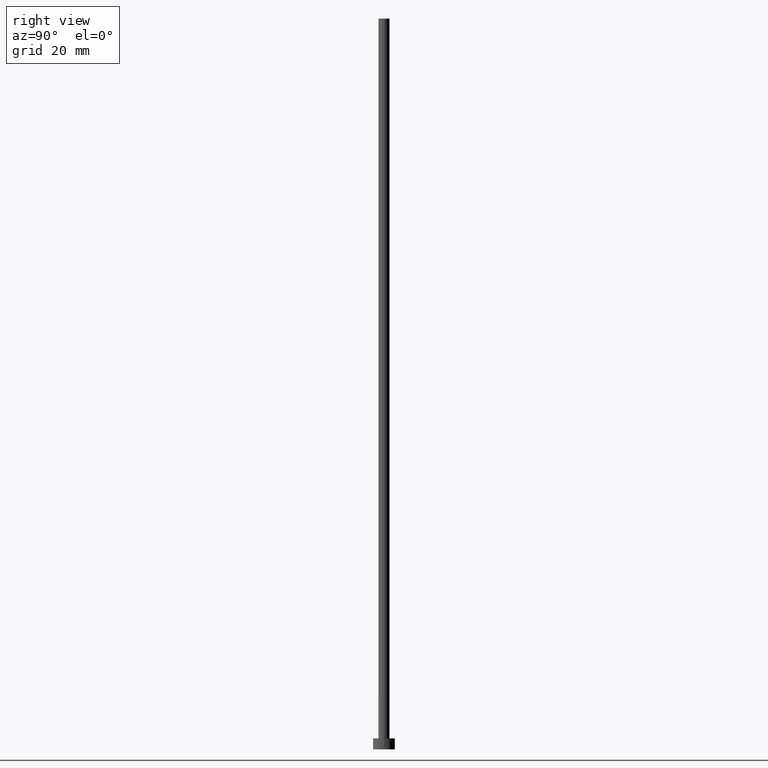
[diagram: clean part render]
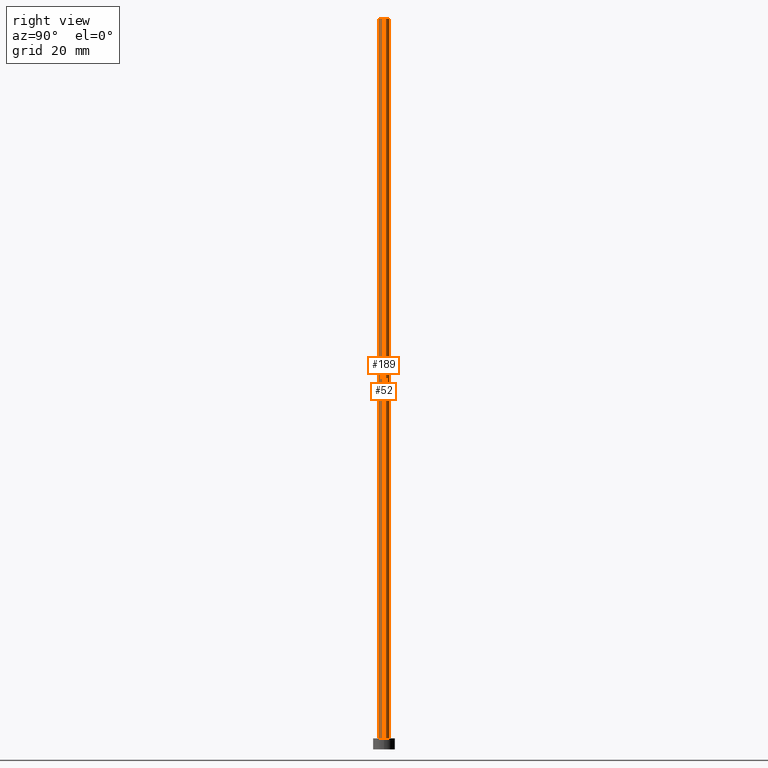
[diagram: same view with one multi-face feature highlighted, each face labeled with its STEP entity id]
A machine part, right view. The highlighted faces form ONE feature: a constant-radius fillet chain: 2 tangent blend faces with common blend radius 1.5 mm. The faces share edges in the B-rep.
Their STEP definitions:
[1] entity #189 (Cylinder):
#1 = AXIS2_PLACEMENT_3D ( 'NONE', #151, #56, #133 ) ;
#7 = CIRCLE ( 'NONE', #243, 1.500000000000000222 ) ;
#28 = CARTESIAN_POINT ( 'NONE',  ( -1.500000000000000222, 0.000000000000000000, 3.000000000000000000 ) ) ;
#29 = VECTOR ( 'NONE', #254, 1000.000000000000000 ) ;
#30 = DIRECTION ( 'NONE',  ( 0.000000000000000000, 0.000000000000000000, 1.000000000000000000 ) ) ;
#38 = DIRECTION ( 'NONE',  ( 0.000000000000000000, 0.000000000000000000, 1.000000000000000000 ) ) ;
#39 = CARTESIAN_POINT ( 'NONE',  ( -1.500000000000000222, 0.000000000000000000, 200.0000000000000000 ) ) ;
#42 = CARTESIAN_POINT ( 'NONE',  ( 1.500000000000000222, 1.836970198721030181E-16, 200.0000000000000000 ) ) ;
#43 = ORIENTED_EDGE ( 'NONE', *, *, #209, .T. ) ;
#56 = DIRECTION ( 'NONE',  ( -0.000000000000000000, -0.000000000000000000, -1.000000000000000000 ) ) ;
#58 = AXIS2_PLACEMENT_3D ( 'NONE', #176, #30, #124 ) ;
#61 = CARTESIAN_POINT ( 'NONE',  ( 1.500000000000000222, 1.836970198721030181E-16, 200.0000000000000000 ) ) ;
#68 = EDGE_CURVE ( 'NONE', #155, #200, #212, .T. ) ;
#69 = CYLINDRICAL_SURFACE ( 'NONE', #1, 1.500000000000000222 ) ;
#91 = CARTESIAN_POINT ( 'NONE',  ( 0.000000000000000000, 0.000000000000000000, 200.0000000000000000 ) ) ;
#92 = ORIENTED_EDGE ( 'NONE', *, *, #68, .T. ) ;
#94 = EDGE_LOOP ( 'NONE', ( #169, #241, #92, #43 ) ) ;
#97 = VECTOR ( 'NONE', #255, 1000.000000000000000 ) ;
#105 = CARTESIAN_POINT ( 'NONE',  ( 1.500000000000000222, 1.836970198721030181E-16, 3.000000000000000000 ) ) ;
#115 = DIRECTION ( 'NONE',  ( 1.000000000000000000, 0.000000000000000000, 0.000000000000000000 ) ) ;
#118 = EDGE_CURVE ( 'NONE', #153, #217, #135, .T. ) ;
#124 = DIRECTION ( 'NONE',  ( 1.000000000000000000, 0.000000000000000000, 0.000000000000000000 ) ) ;
#130 = CIRCLE ( 'NONE', #58, 1.500000000000000222 ) ;
#133 = DIRECTION ( 'NONE',  ( -1.000000000000000000, 0.000000000000000000, 0.000000000000000000 ) ) ;
#135 = LINE ( 'NONE', #42, #97 ) ;
#147 = EDGE_CURVE ( 'NONE', #155, #153, #7, .T. ) ;
#151 = CARTESIAN_POINT ( 'NONE',  ( 0.000000000000000000, 0.000000000000000000, 200.0000000000000000 ) ) ;
#153 = VERTEX_POINT ( 'NONE', #61 ) ;
#155 = VERTEX_POINT ( 'NONE', #39 ) ;
#169 = ORIENTED_EDGE ( 'NONE', *, *, #118, .F. ) ;
#173 = CARTESIAN_POINT ( 'NONE',  ( -1.500000000000000222, 0.000000000000000000, 200.0000000000000000 ) ) ;
#176 = CARTESIAN_POINT ( 'NONE',  ( 0.000000000000000000, 0.000000000000000000, 3.000000000000000000 ) ) ;
#189 = ADVANCED_FACE ( 'NONE', ( #195 ), #69, .T. ) ;
#195 = FACE_OUTER_BOUND ( 'NONE', #94, .T. ) ;
#200 = VERTEX_POINT ( 'NONE', #28 ) ;
#209 = EDGE_CURVE ( 'NONE', #200, #217, #130, .T. ) ;
#212 = LINE ( 'NONE', #173, #29 ) ;
#217 = VERTEX_POINT ( 'NONE', #105 ) ;
#241 = ORIENTED_EDGE ( 'NONE', *, *, #147, .F. ) ;
#243 = AXIS2_PLACEMENT_3D ( 'NONE', #91, #38, #115 ) ;
#254 = DIRECTION ( 'NONE',  ( -0.000000000000000000, -0.000000000000000000, -1.000000000000000000 ) ) ;
#255 = DIRECTION ( 'NONE',  ( -0.000000000000000000, -0.000000000000000000, -1.000000000000000000 ) ) ;
[2] entity #52 (Cylinder):
#17 = DIRECTION ( 'NONE',  ( -0.000000000000000000, -0.000000000000000000, -1.000000000000000000 ) ) ;
#20 = ORIENTED_EDGE ( 'NONE', *, *, #132, .T. ) ;
#28 = CARTESIAN_POINT ( 'NONE',  ( -1.500000000000000222, 0.000000000000000000, 3.000000000000000000 ) ) ;
#29 = VECTOR ( 'NONE', #254, 1000.000000000000000 ) ;
#37 = DIRECTION ( 'NONE',  ( -1.000000000000000000, 0.000000000000000000, 0.000000000000000000 ) ) ;
#39 = CARTESIAN_POINT ( 'NONE',  ( -1.500000000000000222, 0.000000000000000000, 200.0000000000000000 ) ) ;
#42 = CARTESIAN_POINT ( 'NONE',  ( 1.500000000000000222, 1.836970198721030181E-16, 200.0000000000000000 ) ) ;
#48 = ORIENTED_EDGE ( 'NONE', *, *, #118, .T. ) ;
#52 = ADVANCED_FACE ( 'NONE', ( #116 ), #211, .T. ) ;
#61 = CARTESIAN_POINT ( 'NONE',  ( 1.500000000000000222, 1.836970198721030181E-16, 200.0000000000000000 ) ) ;
#68 = EDGE_CURVE ( 'NONE', #155, #200, #212, .T. ) ;
#83 = AXIS2_PLACEMENT_3D ( 'NONE', #136, #17, #37 ) ;
#88 = AXIS2_PLACEMENT_3D ( 'NONE', #194, #157, #234 ) ;
#90 = EDGE_CURVE ( 'NONE', #153, #155, #112, .T. ) ;
#97 = VECTOR ( 'NONE', #255, 1000.000000000000000 ) ;
#105 = CARTESIAN_POINT ( 'NONE',  ( 1.500000000000000222, 1.836970198721030181E-16, 3.000000000000000000 ) ) ;
#107 = ORIENTED_EDGE ( 'NONE', *, *, #68, .F. ) ;
#112 = CIRCLE ( 'NONE', #166, 1.500000000000000222 ) ;
#116 = FACE_OUTER_BOUND ( 'NONE', #137, .T. ) ;
#118 = EDGE_CURVE ( 'NONE', #153, #217, #135, .T. ) ;
#132 = EDGE_CURVE ( 'NONE', #217, #200, #203, .T. ) ;
#134 = DIRECTION ( 'NONE',  ( 1.000000000000000000, 0.000000000000000000, 0.000000000000000000 ) ) ;
#135 = LINE ( 'NONE', #42, #97 ) ;
#136 = CARTESIAN_POINT ( 'NONE',  ( 0.000000000000000000, 0.000000000000000000, 200.0000000000000000 ) ) ;
#137 = EDGE_LOOP ( 'NONE', ( #156, #48, #20, #107 ) ) ;
#153 = VERTEX_POINT ( 'NONE', #61 ) ;
#155 = VERTEX_POINT ( 'NONE', #39 ) ;
#156 = ORIENTED_EDGE ( 'NONE', *, *, #90, .F. ) ;
#157 = DIRECTION ( 'NONE',  ( 0.000000000000000000, 0.000000000000000000, 1.000000000000000000 ) ) ;
#166 = AXIS2_PLACEMENT_3D ( 'NONE', #250, #230, #134 ) ;
#173 = CARTESIAN_POINT ( 'NONE',  ( -1.500000000000000222, 0.000000000000000000, 200.0000000000000000 ) ) ;
#194 = CARTESIAN_POINT ( 'NONE',  ( 0.000000000000000000, 0.000000000000000000, 3.000000000000000000 ) ) ;
#200 = VERTEX_POINT ( 'NONE', #28 ) ;
#203 = CIRCLE ( 'NONE', #88, 1.500000000000000222 ) ;
#211 = CYLINDRICAL_SURFACE ( 'NONE', #83, 1.500000000000000222 ) ;
#212 = LINE ( 'NONE', #173, #29 ) ;
#217 = VERTEX_POINT ( 'NONE', #105 ) ;
#230 = DIRECTION ( 'NONE',  ( 0.000000000000000000, 0.000000000000000000, 1.000000000000000000 ) ) ;
#234 = DIRECTION ( 'NONE',  ( 1.000000000000000000, 0.000000000000000000, 0.000000000000000000 ) ) ;
#250 = CARTESIAN_POINT ( 'NONE',  ( 0.000000000000000000, 0.000000000000000000, 200.0000000000000000 ) ) ;
#254 = DIRECTION ( 'NONE',  ( -0.000000000000000000, -0.000000000000000000, -1.000000000000000000 ) ) ;
#255 = DIRECTION ( 'NONE',  ( -0.000000000000000000, -0.000000000000000000, -1.000000000000000000 ) ) ;